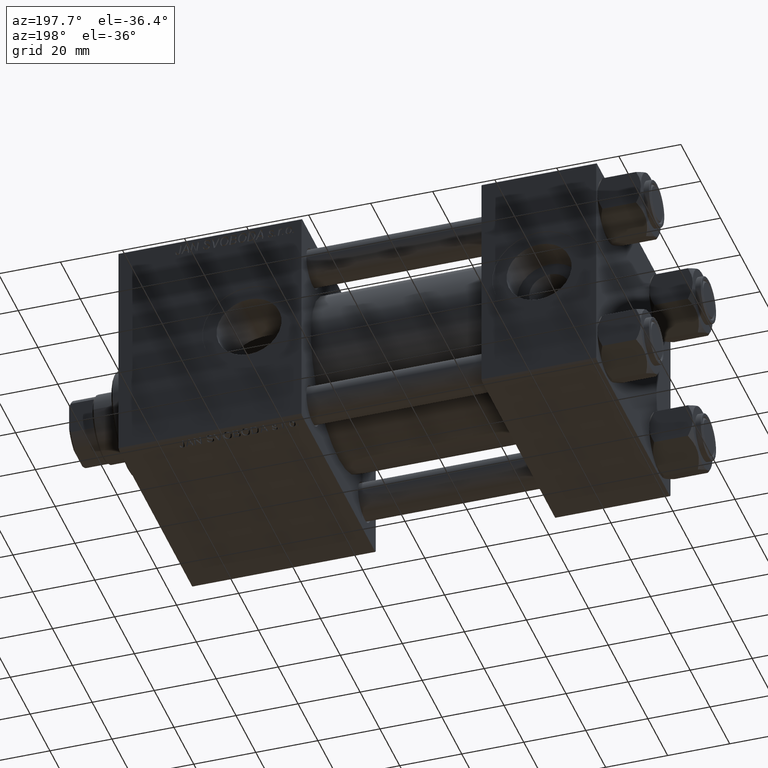
[diagram: clean part render]
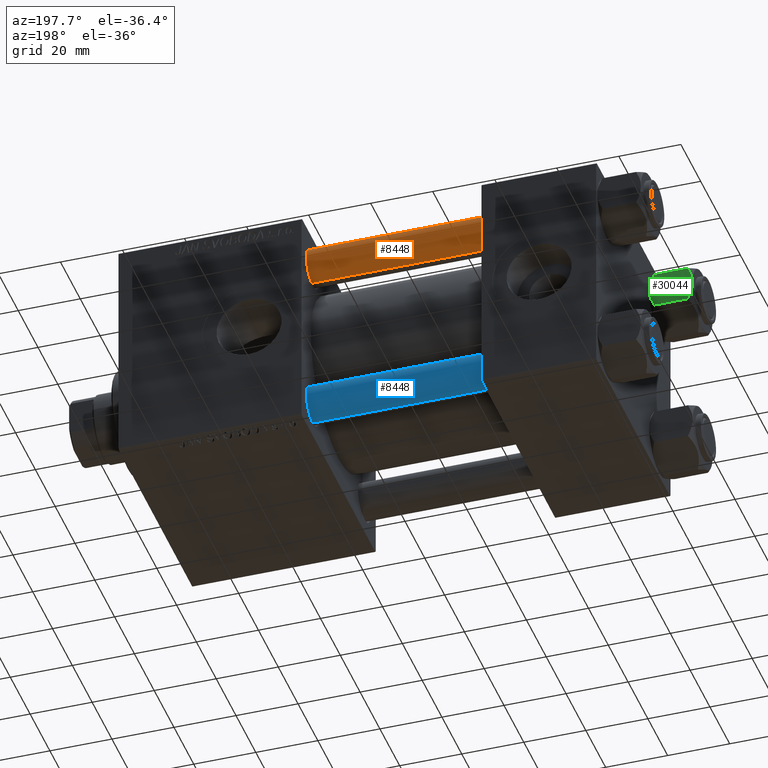
[diagram: same view with three faces highlighted in distinct colors, each labeled with its STEP entity id]
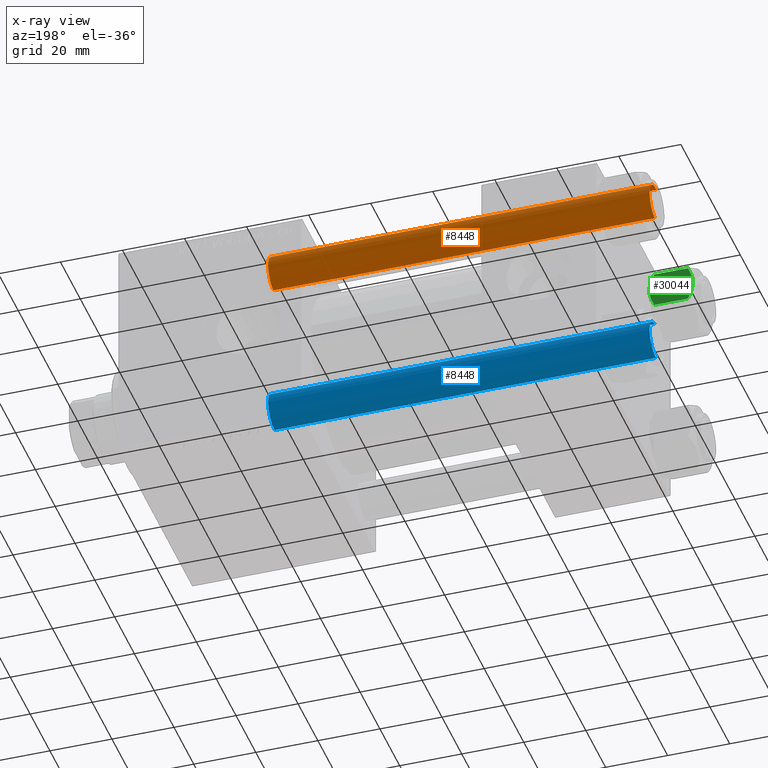
[diagram: x-ray of the same camera — body ghosted, the three highlighted faces saturated]
A machine part, auxiliary view with three faces highlighted in distinct colors.
The next image is the same camera in x-ray (body ghosted, the three faces saturated) — at least one of them is partly hidden behind the body in this view.
Their STEP definitions:

[orange] entity #8448 — the highlighted cylindrical surface (edge-blend (fillet) strip) has radius 6 mm, axis along (-1, 0, 0).
#1791 = AXIS2_PLACEMENT_3D ( 'NONE', #48991, #49515, #9401 ) ;
#1916 = ORIENTED_EDGE ( 'NONE', *, *, #50016, .T. ) ;
#2035 = LINE ( 'NONE', #10221, #48272 ) ;
#7263 = AXIS2_PLACEMENT_3D ( 'NONE', #42604, #43641, #27008 ) ;
#8448 = ADVANCED_FACE ( 'NONE', ( #33678 ), #21274, .T. ) ;
#9171 = CARTESIAN_POINT ( 'NONE',  ( 6.000000000000000888, 7.347880794884120722E-16, 0.4999999999999865663 ) ) ;
#9401 = DIRECTION ( 'NONE',  ( -1.000000000000000000, 0.000000000000000000, 0.000000000000000000 ) ) ;
#10221 = CARTESIAN_POINT ( 'NONE',  ( -6.000000000000000888, 0.000000000000000000, 124.0000000000000000 ) ) ;
#11258 = ORIENTED_EDGE ( 'NONE', *, *, #36399, .T. ) ;
#12358 = CARTESIAN_POINT ( 'NONE',  ( -6.000000000000000888, 0.000000000000000000, 123.5000000000000426 ) ) ;
#12940 = AXIS2_PLACEMENT_3D ( 'NONE', #29196, #37902, #29712 ) ;
#15174 = EDGE_CURVE ( 'NONE', #52124, #25919, #2035, .T. ) ;
#16508 = CARTESIAN_POINT ( 'NONE',  ( -6.000000000000000888, 0.000000000000000000, 0.4999999999999865663 ) ) ;
#20303 = VERTEX_POINT ( 'NONE', #42583 ) ;
#21274 = CYLINDRICAL_SURFACE ( 'NONE', #1791, 6.000000000000000888 ) ;
#23114 = VERTEX_POINT ( 'NONE', #9171 ) ;
#23334 = LINE ( 'NONE', #35471, #27376 ) ;
#25919 = VERTEX_POINT ( 'NONE', #16508 ) ;
#27008 = DIRECTION ( 'NONE',  ( 1.000000000000000000, 0.000000000000000000, 0.000000000000000000 ) ) ;
#27376 = VECTOR ( 'NONE', #46824, 1000.000000000000000 ) ;
#28964 = CIRCLE ( 'NONE', #12940, 6.000000000000000888 ) ;
#29196 = CARTESIAN_POINT ( 'NONE',  ( 0.000000000000000000, 0.000000000000000000, 123.5000000000000426 ) ) ;
#29712 = DIRECTION ( 'NONE',  ( 1.000000000000000000, 0.000000000000000000, 0.000000000000000000 ) ) ;
#30535 = DIRECTION ( 'NONE',  ( -0.000000000000000000, -0.000000000000000000, -1.000000000000000000 ) ) ;
#31312 = EDGE_LOOP ( 'NONE', ( #11258, #49954, #1916, #42310 ) ) ;
#32529 = CIRCLE ( 'NONE', #7263, 6.000000000000000888 ) ;
#33678 = FACE_OUTER_BOUND ( 'NONE', #31312, .T. ) ;
#35471 = CARTESIAN_POINT ( 'NONE',  ( 6.000000000000000888, 7.347880794884120722E-16, 124.0000000000000000 ) ) ;
#36399 = EDGE_CURVE ( 'NONE', #52124, #20303, #28964, .T. ) ;
#37902 = DIRECTION ( 'NONE',  ( 0.000000000000000000, 0.000000000000000000, -1.000000000000000000 ) ) ;
#38748 = EDGE_CURVE ( 'NONE', #20303, #23114, #23334, .T. ) ;
#42310 = ORIENTED_EDGE ( 'NONE', *, *, #15174, .F. ) ;
#42583 = CARTESIAN_POINT ( 'NONE',  ( 6.000000000000000888, 7.347880794884120722E-16, 123.5000000000000426 ) ) ;
#42604 = CARTESIAN_POINT ( 'NONE',  ( 0.000000000000000000, 0.000000000000000000, 0.4999999999999865663 ) ) ;
#43641 = DIRECTION ( 'NONE',  ( -0.000000000000000000, -0.000000000000000000, 1.000000000000000000 ) ) ;
#46824 = DIRECTION ( 'NONE',  ( -0.000000000000000000, -0.000000000000000000, -1.000000000000000000 ) ) ;
#48272 = VECTOR ( 'NONE', #30535, 1000.000000000000000 ) ;
#48991 = CARTESIAN_POINT ( 'NONE',  ( 0.000000000000000000, 0.000000000000000000, 124.0000000000000000 ) ) ;
#49515 = DIRECTION ( 'NONE',  ( -0.000000000000000000, -0.000000000000000000, -1.000000000000000000 ) ) ;
#49954 = ORIENTED_EDGE ( 'NONE', *, *, #38748, .T. ) ;
#50016 = EDGE_CURVE ( 'NONE', #23114, #25919, #32529, .T. ) ;
#52124 = VERTEX_POINT ( 'NONE', #12358 ) ;

[blue] entity #8448 — the highlighted cylindrical surface (edge-blend (fillet) strip) has radius 6 mm, axis along (1, -0, 0).
#1791 = AXIS2_PLACEMENT_3D ( 'NONE', #48991, #49515, #9401 ) ;
#1916 = ORIENTED_EDGE ( 'NONE', *, *, #50016, .T. ) ;
#2035 = LINE ( 'NONE', #10221, #48272 ) ;
#7263 = AXIS2_PLACEMENT_3D ( 'NONE', #42604, #43641, #27008 ) ;
#8448 = ADVANCED_FACE ( 'NONE', ( #33678 ), #21274, .T. ) ;
#9171 = CARTESIAN_POINT ( 'NONE',  ( 6.000000000000000888, 7.347880794884120722E-16, 0.4999999999999865663 ) ) ;
#9401 = DIRECTION ( 'NONE',  ( -1.000000000000000000, 0.000000000000000000, 0.000000000000000000 ) ) ;
#10221 = CARTESIAN_POINT ( 'NONE',  ( -6.000000000000000888, 0.000000000000000000, 124.0000000000000000 ) ) ;
#11258 = ORIENTED_EDGE ( 'NONE', *, *, #36399, .T. ) ;
#12358 = CARTESIAN_POINT ( 'NONE',  ( -6.000000000000000888, 0.000000000000000000, 123.5000000000000426 ) ) ;
#12940 = AXIS2_PLACEMENT_3D ( 'NONE', #29196, #37902, #29712 ) ;
#15174 = EDGE_CURVE ( 'NONE', #52124, #25919, #2035, .T. ) ;
#16508 = CARTESIAN_POINT ( 'NONE',  ( -6.000000000000000888, 0.000000000000000000, 0.4999999999999865663 ) ) ;
#20303 = VERTEX_POINT ( 'NONE', #42583 ) ;
#21274 = CYLINDRICAL_SURFACE ( 'NONE', #1791, 6.000000000000000888 ) ;
#23114 = VERTEX_POINT ( 'NONE', #9171 ) ;
#23334 = LINE ( 'NONE', #35471, #27376 ) ;
#25919 = VERTEX_POINT ( 'NONE', #16508 ) ;
#27008 = DIRECTION ( 'NONE',  ( 1.000000000000000000, 0.000000000000000000, 0.000000000000000000 ) ) ;
#27376 = VECTOR ( 'NONE', #46824, 1000.000000000000000 ) ;
#28964 = CIRCLE ( 'NONE', #12940, 6.000000000000000888 ) ;
#29196 = CARTESIAN_POINT ( 'NONE',  ( 0.000000000000000000, 0.000000000000000000, 123.5000000000000426 ) ) ;
#29712 = DIRECTION ( 'NONE',  ( 1.000000000000000000, 0.000000000000000000, 0.000000000000000000 ) ) ;
#30535 = DIRECTION ( 'NONE',  ( -0.000000000000000000, -0.000000000000000000, -1.000000000000000000 ) ) ;
#31312 = EDGE_LOOP ( 'NONE', ( #11258, #49954, #1916, #42310 ) ) ;
#32529 = CIRCLE ( 'NONE', #7263, 6.000000000000000888 ) ;
#33678 = FACE_OUTER_BOUND ( 'NONE', #31312, .T. ) ;
#35471 = CARTESIAN_POINT ( 'NONE',  ( 6.000000000000000888, 7.347880794884120722E-16, 124.0000000000000000 ) ) ;
#36399 = EDGE_CURVE ( 'NONE', #52124, #20303, #28964, .T. ) ;
#37902 = DIRECTION ( 'NONE',  ( 0.000000000000000000, 0.000000000000000000, -1.000000000000000000 ) ) ;
#38748 = EDGE_CURVE ( 'NONE', #20303, #23114, #23334, .T. ) ;
#42310 = ORIENTED_EDGE ( 'NONE', *, *, #15174, .F. ) ;
#42583 = CARTESIAN_POINT ( 'NONE',  ( 6.000000000000000888, 7.347880794884120722E-16, 123.5000000000000426 ) ) ;
#42604 = CARTESIAN_POINT ( 'NONE',  ( 0.000000000000000000, 0.000000000000000000, 0.4999999999999865663 ) ) ;
#43641 = DIRECTION ( 'NONE',  ( -0.000000000000000000, -0.000000000000000000, 1.000000000000000000 ) ) ;
#46824 = DIRECTION ( 'NONE',  ( -0.000000000000000000, -0.000000000000000000, -1.000000000000000000 ) ) ;
#48272 = VECTOR ( 'NONE', #30535, 1000.000000000000000 ) ;
#48991 = CARTESIAN_POINT ( 'NONE',  ( 0.000000000000000000, 0.000000000000000000, 124.0000000000000000 ) ) ;
#49515 = DIRECTION ( 'NONE',  ( -0.000000000000000000, -0.000000000000000000, -1.000000000000000000 ) ) ;
#49954 = ORIENTED_EDGE ( 'NONE', *, *, #38748, .T. ) ;
#50016 = EDGE_CURVE ( 'NONE', #23114, #25919, #32529, .T. ) ;
#52124 = VERTEX_POINT ( 'NONE', #12358 ) ;

[green] entity #30044 — the highlighted planar face has unit normal (-0, -1, 0).
#13 = EDGE_CURVE ( 'NONE', #35278, #35201, #48455, .T. ) ;
#546 = CARTESIAN_POINT ( 'NONE',  ( 1.772424303831126258, -10.06321519197517311, -0.1338870921722345175 ) ) ;
#897 = ORIENTED_EDGE ( 'NONE', *, *, #14320, .F. ) ;
#2124 = B_SPLINE_CURVE_WITH_KNOTS ( 'NONE', 3,
 ( #3676, #19762, #11329, #23467, #35877, #20014, #3416, #47992 ),
 .UNSPECIFIED., .F., .F.,
 ( 4, 2, 2, 4 ),
 ( 0.01467889604968879332, 0.01619420351931635110, 0.01770951098894391063, 0.02074012592819902620 ),
 .UNSPECIFIED. ) ;
#2137 = VECTOR ( 'NONE', #48608, 1000.000000000000000 ) ;
#2158 = EDGE_CURVE ( 'NONE', #40951, #39196, #14243, .T. ) ;
#2393 = CARTESIAN_POINT ( 'NONE',  ( -4.908816193182379273, -10.06321519197517667, -12.89380709538398939 ) ) ;
#2642 = CARTESIAN_POINT ( 'NONE',  ( 5.810000000000000497, -10.06321519197517667, -12.44321519197518633 ) ) ;
#3416 = CARTESIAN_POINT ( 'NONE',  ( 1.020132157807625672, -10.06321519197517489, -14.00000000000000178 ) ) ;
#3478 = ORIENTED_EDGE ( 'NONE', *, *, #25602, .F. ) ;
#3676 = CARTESIAN_POINT ( 'NONE',  ( 5.810000000000000497, -10.06321519197517667, -12.44321519197518633 ) ) ;
#3846 = CARTESIAN_POINT ( 'NONE',  ( -4.900668367960793859, -10.06321519197517667, -1.121556683709771463 ) ) ;
#4780 = CARTESIAN_POINT ( 'NONE',  ( 2.508586450168040827, -10.06321519197517667, -0.2975752632032254708 ) ) ;
#5196 = B_SPLINE_CURVE_WITH_KNOTS ( 'NONE', 3,
 ( #45164, #20341, #16385, #20601, #546, #4780, #16917, #9001, #32747 ),
 .UNSPECIFIED., .F., .F.,
 ( 4, 2, 1, 2, 4 ),
 ( 0.02074012592819902273, 0.02149589804477578664, 0.02225167016135255402, 0.02376321439450608530, 0.02678630286081314441 ),
 .UNSPECIFIED. ) ;
#7811 = EDGE_CURVE ( 'NONE', #35201, #40951, #34654, .T. ) ;
#9001 = CARTESIAN_POINT ( 'NONE',  ( 4.908816193182381937, -10.06321519197517844, -1.106192904616003059 ) ) ;
#9791 = CARTESIAN_POINT ( 'NONE',  ( -1.018274738099085086, -10.06321519197517667, -13.95177257919929126 ) ) ;
#10613 = ORIENTED_EDGE ( 'NONE', *, *, #49252, .T. ) ;
#11329 = CARTESIAN_POINT ( 'NONE',  ( 4.900668367960796523, -10.06321519197517489, -12.87844331629023209 ) ) ;
#11578 = CARTESIAN_POINT ( 'NONE',  ( 5.810000000000000497, -10.06321519197517667, -14.00000000000000000 ) ) ;
#11682 = LINE ( 'NONE', #43882, #2137 ) ;
#12613 = ORIENTED_EDGE ( 'NONE', *, *, #13, .F. ) ;
#13226 = CARTESIAN_POINT ( 'NONE',  ( -5.810000000000000497, -10.06321519197517844, -12.44321519197518455 ) ) ;
#14243 = B_SPLINE_CURVE_WITH_KNOTS ( 'NONE', 3,
 ( #35541, #20182, #3846, #43705, #15460, #40005, #39498, #19678 ),
 .UNSPECIFIED., .F., .F.,
 ( 4, 2, 2, 4 ),
 ( 0.01467889604968879332, 0.01619420351931635110, 0.01770951098894390716, 0.02074012592819902273 ),
 .UNSPECIFIED. ) ;
#14320 = EDGE_CURVE ( 'NONE', #39196, #16023, #5196, .T. ) ;
#14324 = DIRECTION ( 'NONE',  ( -0.000000000000000000, -0.000000000000000000, 1.000000000000000000 ) ) ;
#14974 = ORIENTED_EDGE ( 'NONE', *, *, #2158, .F. ) ;
#15156 = EDGE_LOOP ( 'NONE', ( #3478, #10613, #897, #14974, #45484, #12613 ) ) ;
#15460 = CARTESIAN_POINT ( 'NONE',  ( -3.474497094393254937, -10.06321519197517844, -0.5726960901042742469 ) ) ;
#16023 = VERTEX_POINT ( 'NONE', #18396 ) ;
#16385 = CARTESIAN_POINT ( 'NONE',  ( 0.5112014849988879561, -10.06321519197517667, -0.009803979428909967431 ) ) ;
#16917 = CARTESIAN_POINT ( 'NONE',  ( 3.960942496020604331, -10.06321519197518022, -0.7115728323610380768 ) ) ;
#17692 = CARTESIAN_POINT ( 'NONE',  ( -0.5112014849988886223, -10.06321519197517489, -13.99019602057109068 ) ) ;
#18396 = CARTESIAN_POINT ( 'NONE',  ( 5.810000000000000497, -10.06321519197517667, -1.556784808024811895 ) ) ;
#18482 = CARTESIAN_POINT ( 'NONE',  ( -1.772424303831128478, -10.06321519197517489, -13.86611290782776251 ) ) ;
#18781 = CARTESIAN_POINT ( 'NONE',  ( 1.502314598737159623E-15, -10.06321519197518199, 0.000000000000000000 ) ) ;
#19270 = CARTESIAN_POINT ( 'NONE',  ( -5.810000000000000497, -10.06321519197517844, -1.556784808024813893 ) ) ;
#19678 = CARTESIAN_POINT ( 'NONE',  ( 1.502314598737159623E-15, -10.06321519197518199, 0.000000000000000000 ) ) ;
#19762 = CARTESIAN_POINT ( 'NONE',  ( 5.359707691559676412, -10.06321519197517844, -12.66836134619534882 ) ) ;
#20006 = DIRECTION ( 'NONE',  ( -1.492877345935290102E-16, 1.000000000000000000, 0.000000000000000000 ) ) ;
#20014 = CARTESIAN_POINT ( 'NONE',  ( 2.013954290287967019, -10.06321519197517489, -13.84298883202400532 ) ) ;
#20182 = CARTESIAN_POINT ( 'NONE',  ( -5.359707691559672860, -10.06321519197517844, -1.331638653804651851 ) ) ;
#20341 = CARTESIAN_POINT ( 'NONE',  ( 0.2543996698847484361, -10.06321519197517667, 4.398642095091581661E-15 ) ) ;
#20601 = CARTESIAN_POINT ( 'NONE',  ( 1.018274738099083976, -10.06321519197517667, -0.04822742080070548110 ) ) ;
#22450 = CARTESIAN_POINT ( 'NONE',  ( -3.960942496020602555, -10.06321519197517667, -13.28842716763895737 ) ) ;
#22828 = AXIS2_PLACEMENT_3D ( 'NONE', #11578, #20006, #27674 ) ;
#23467 = CARTESIAN_POINT ( 'NONE',  ( 3.958929922320422179, -10.06321519197517489, -13.25786014976459803 ) ) ;
#25602 = EDGE_CURVE ( 'NONE', #26978, #35278, #2124, .T. ) ;
#26978 = VERTEX_POINT ( 'NONE', #2642 ) ;
#27674 = DIRECTION ( 'NONE',  ( -1.000000000000000000, -1.492877345935290102E-16, 0.000000000000000000 ) ) ;
#30044 = ADVANCED_FACE ( 'NONE', ( #39828 ), #43775, .F. ) ;
#32747 = CARTESIAN_POINT ( 'NONE',  ( 5.810000000000000497, -10.06321519197517667, -1.556784808024811895 ) ) ;
#33806 = CARTESIAN_POINT ( 'NONE',  ( -2.508586450168039494, -10.06321519197517844, -13.70242473679676998 ) ) ;
#34652 = VECTOR ( 'NONE', #14324, 1000.000000000000000 ) ;
#34654 = LINE ( 'NONE', #50475, #34652 ) ;
#35201 = VERTEX_POINT ( 'NONE', #37183 ) ;
#35278 = VERTEX_POINT ( 'NONE', #42702 ) ;
#35541 = CARTESIAN_POINT ( 'NONE',  ( -5.810000000000000497, -10.06321519197517844, -1.556784808024813893 ) ) ;
#35877 = CARTESIAN_POINT ( 'NONE',  ( 3.474497094393254049, -10.06321519197517667, -13.42730390989572697 ) ) ;
#37183 = CARTESIAN_POINT ( 'NONE',  ( -5.810000000000000497, -10.06321519197517844, -12.44321519197518455 ) ) ;
#39196 = VERTEX_POINT ( 'NONE', #18781 ) ;
#39498 = CARTESIAN_POINT ( 'NONE',  ( -1.020132157807625450, -10.06321519197517489, 4.052205619664572033E-15 ) ) ;
#39828 = FACE_OUTER_BOUND ( 'NONE', #15156, .T. ) ;
#40005 = CARTESIAN_POINT ( 'NONE',  ( -2.013954290287968352, -10.06321519197517844, -0.1570111679759963463 ) ) ;
#40951 = VERTEX_POINT ( 'NONE', #19270 ) ;
#41734 = CARTESIAN_POINT ( 'NONE',  ( -0.2543996698847483806, -10.06321519197517667, -14.00000000000000355 ) ) ;
#41993 = CARTESIAN_POINT ( 'NONE',  ( 1.502314598737159820E-15, -10.06321519197518022, -14.00000000000000000 ) ) ;
#42702 = CARTESIAN_POINT ( 'NONE',  ( 1.502314598737159820E-15, -10.06321519197518022, -14.00000000000000000 ) ) ;
#43705 = CARTESIAN_POINT ( 'NONE',  ( -3.958929922320420403, -10.06321519197517844, -0.7421398502353970805 ) ) ;
#43775 = PLANE ( 'NONE',  #22828 ) ;
#43882 = CARTESIAN_POINT ( 'NONE',  ( 5.810000000000000497, -10.06321519197517667, -14.00000000000000000 ) ) ;
#45164 = CARTESIAN_POINT ( 'NONE',  ( 1.502314598737159623E-15, -10.06321519197518199, 0.000000000000000000 ) ) ;
#45484 = ORIENTED_EDGE ( 'NONE', *, *, #7811, .F. ) ;
#47992 = CARTESIAN_POINT ( 'NONE',  ( 1.502314598737159820E-15, -10.06321519197518022, -14.00000000000000000 ) ) ;
#48455 = B_SPLINE_CURVE_WITH_KNOTS ( 'NONE', 3,
 ( #41993, #41734, #17692, #9791, #18482, #33806, #22450, #2393, #13226 ),
 .UNSPECIFIED., .F., .F.,
 ( 4, 2, 1, 2, 4 ),
 ( 0.02074012592819902620, 0.02149589804477579011, 0.02225167016135255749, 0.02376321439450608530, 0.02678630286081314441 ),
 .UNSPECIFIED. ) ;
#48608 = DIRECTION ( 'NONE',  ( -0.000000000000000000, -0.000000000000000000, 1.000000000000000000 ) ) ;
#49252 = EDGE_CURVE ( 'NONE', #26978, #16023, #11682, .T. ) ;
#50475 = CARTESIAN_POINT ( 'NONE',  ( -5.810000000000000497, -10.06321519197517844, -14.00000000000000000 ) ) ;